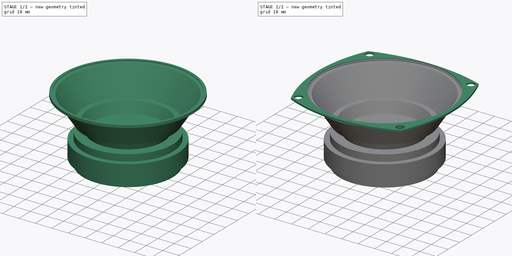
[diagram: build sequence overview — one tinted view per stage of 2, left to right]
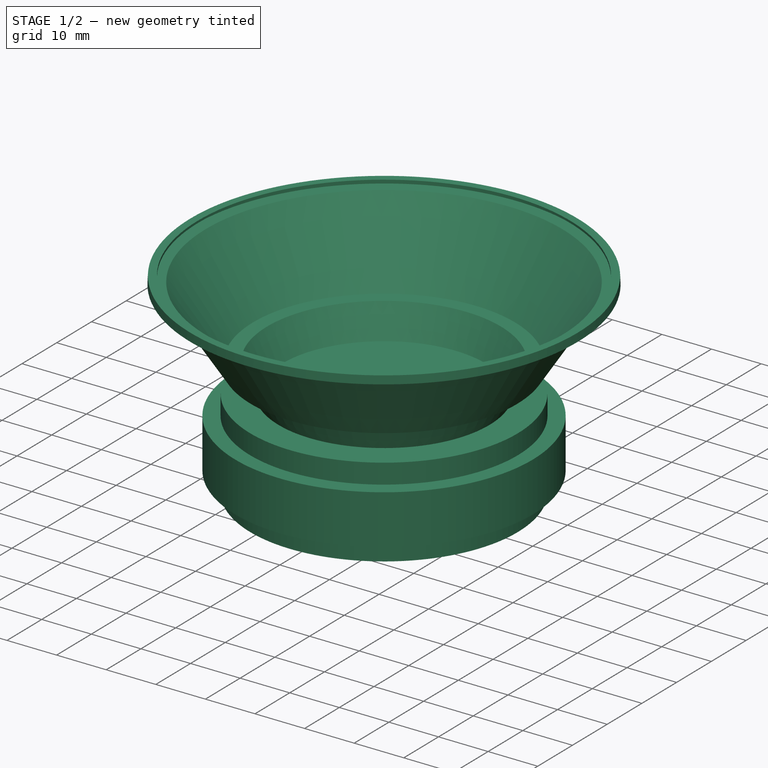
[diagram: stage 1 of 2 — iso view after this stage's code; geometry added in this stage tinted green]
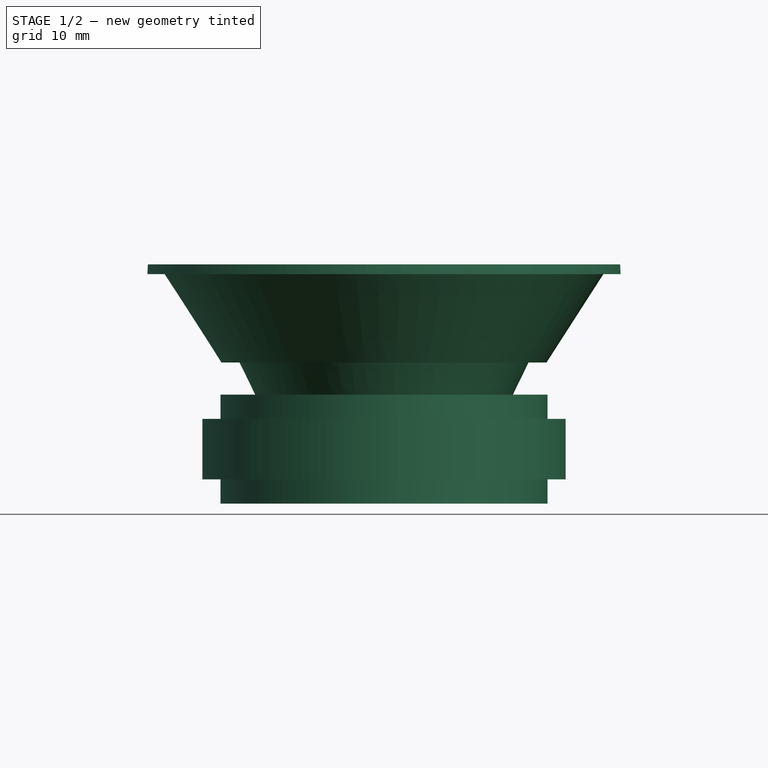
[diagram: stage 1 of 2 — front view after this stage's code; geometry added in this stage tinted green]
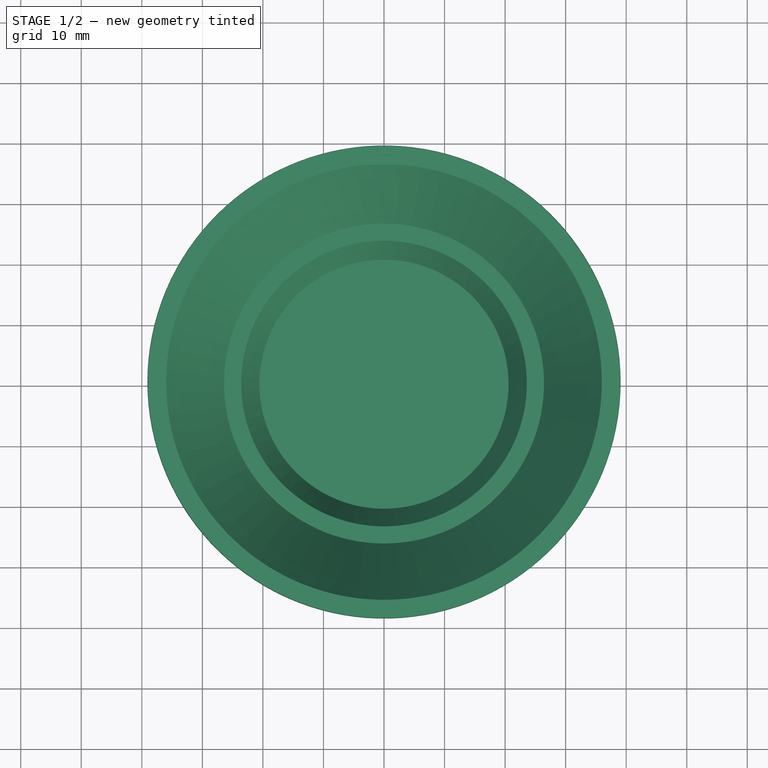
[diagram: stage 1 of 2 — top view after this stage's code; geometry added in this stage tinted green]
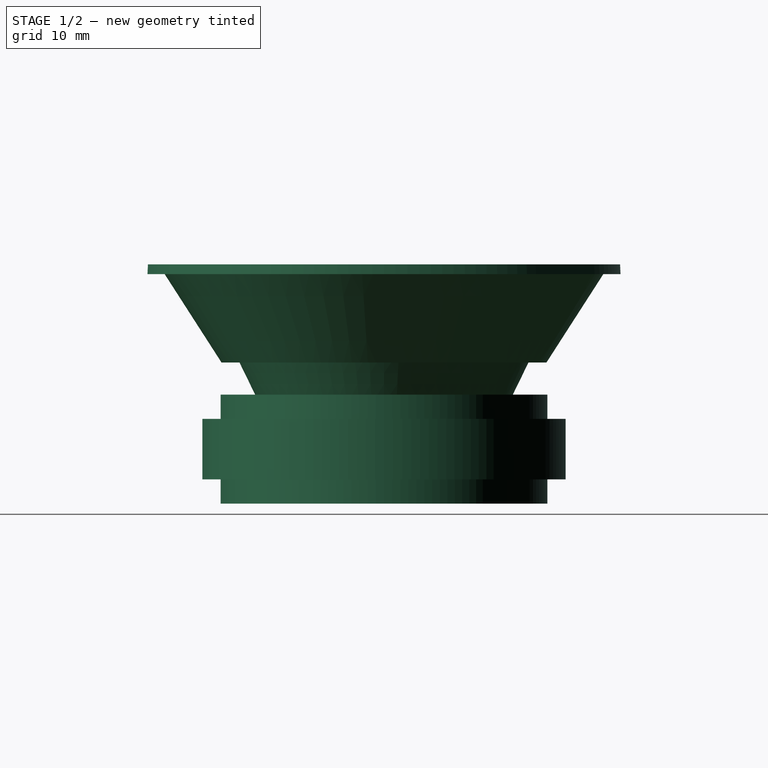
[diagram: stage 1 of 2 — right view after this stage's code; geometry added in this stage tinted green]
FCSTD DOCUMENT  (FreeCAD 1.0R39109 (Git))
Label: Speaker_TwoBodies
License: All rights reserved
LicenseURL: https://en.wikipedia.org/wiki/All_rights_reserved
objects: Sketcher::SketchObject×2, Image::ImagePlane×1, PartDesign::Revolution×1, PartDesign::Pad×1, PartDesign::Body×1, App::Part×1
note: 11 computed .brp shape members not serialized (recipe doc carries the construction recipe); baked Part::Feature solids carry a one-line shape summary decoded from their .brp

FEATURE [Image::ImagePlane] MechanicalDrawing3Inch
  Placement = pos=(-2.2,-1.58e-14,71.3) rot=(1,0,0;1.5708rad)
  XSize = 106.993
  YSize = 189.148
FEATURE [Sketcher::SketchObject] Sketch  label="Sketch_MetalFrame"
  ArcFitTolerance = 1e-06
  AttachmentSupport = -> [XZ_Plane001]
  FullyConstrained = false
  MakeInternals = false
  MapMode = 5
  Placement = pos=(0,0,0) rot=(1,0,0;1.5708rad)
  sketch-geometry (22):
    g0: LineSegment StartX=0 StartY=0 StartZ=0 EndX=27 EndY=0 EndZ=0
    g1: LineSegment StartX=27 StartY=0 StartZ=0 EndX=27 EndY=4 EndZ=0
    g2: LineSegment StartX=27 StartY=4 StartZ=0 EndX=30 EndY=4 EndZ=0
    g3: LineSegment StartX=30 StartY=4 StartZ=0 EndX=30 EndY=14 EndZ=0
    g4: LineSegment StartX=30 StartY=14 StartZ=0 EndX=27 EndY=14 EndZ=0
    g5: LineSegment StartX=27 StartY=14 StartZ=0 EndX=27 EndY=18 EndZ=0
    g6: LineSegment StartX=27 StartY=18 StartZ=0 EndX=21.287 EndY=18 EndZ=0
    g7: LineSegment StartX=21.287 StartY=18 StartZ=0 EndX=23.8733 EndY=23.3071 EndZ=0
    g8: LineSegment StartX=23.8733 StartY=23.3071 StartZ=0 EndX=26.8477 EndY=23.3071 EndZ=0
    g9: LineSegment StartX=26.8477 StartY=23.3071 StartZ=0 EndX=36.2316 EndY=37.8913 EndZ=0
    g10: LineSegment StartX=36.2316 StartY=37.8913 StartZ=0 EndX=39.0747 EndY=37.8913 EndZ=0
    g11: LineSegment StartX=37.5059 StartY=39.5 StartZ=0 EndX=39 EndY=39.5 EndZ=0
    g12: LineSegment StartX=39 StartY=39.5 StartZ=0 EndX=39.0747 EndY=37.8913 EndZ=0
    g13: LineSegment StartX=0 StartY=17.9609 StartZ=0 EndX=20.5682 EndY=17.9609 EndZ=0
    g14: LineSegment StartX=20.5682 StartY=17.9609 StartZ=0 EndX=23.5891 EndY=23.9079 EndZ=0
    g15: LineSegment StartX=23.5891 StartY=23.9079 StartZ=0 EndX=26.4197 EndY=23.9079 EndZ=0
    g16: LineSegment StartX=26.4197 StartY=23.9079 StartZ=0 EndX=35.9727 EndY=38.344 EndZ=0
    g17: LineSegment StartX=35.9727 StartY=38.344 StartZ=0 EndX=38.4934 EndY=38.344 EndZ=0
    g18: LineSegment StartX=38.4934 StartY=38.344 StartZ=0 EndX=38.4934 EndY=39.0665 EndZ=0
    g19: LineSegment StartX=38.4934 StartY=39.0665 StartZ=0 EndX=37.5059 EndY=39.0665 EndZ=0
    g20: LineSegment StartX=37.5059 StartY=39.0665 StartZ=0 EndX=37.5059 EndY=39.5 EndZ=0
    g21: LineSegment StartX=0 StartY=17.9609 StartZ=0 EndX=0 EndY=0 EndZ=0
  constraints (48):
    c: Coincident(g-1,g0)
    c: PointOnObject(g0,g-1)
    c: Coincident(g0,g1)
    c: Coincident(g1,g2)
    c: Coincident(g2,g3)
    c: Coincident(g3,g4)
    c: Coincident(g4,g5)
    c: Coincident(g5,g6)
    c: Coincident(g6,g7)
    c: Coincident(g7,g8)
    c: Coincident(g8,g9)
    c: Coincident(g9,g10)
    c: Coincident(g11,g12)
    c: Coincident(g12,g10)
    c: Vertical(g1,g4)
    c: Vertical(g3)
    c: Horizontal(g4)
    c: Vertical(g5)
    c: Vertical(g1)
    c: Horizontal(g2)
    c: DistanceX(g0,g0) = 27
    c: DistanceX(g0,g2) = 30
    c: DistanceY(g1,g1) = 4
    c: DistanceY(g5,g5) = 4
    c: Horizontal(g6)
    c: DistanceY(g3,g3) = 10
    c: Horizontal(g8)
    c: Horizontal(g11)
    c: Horizontal(g10)
    c: DistanceY(g0,g11) = 39.5
    c: DistanceX(g0,g11) = 39
    c: PointOnObject(g13,g-2)
    c: Horizontal(g13)
    c: Coincident(g13,g14)
    c: Coincident(g14,g15)
    c: Horizontal(g15)
    c: Coincident(g15,g16)
    c: Coincident(g16,g17)
    c: Horizontal(g17)
    c: Coincident(g17,g18)
    c: Coincident(g18,g19)
    c: Coincident(g19,g20)
    c: Coincident(g20,g11)
    c: Vertical(g20)
    c: Horizontal(g19)
    c: Vertical(g18)
    c: Coincident(g13,g21)
    c: Coincident(g21,g0)
FEATURE [PartDesign::Revolution] Revolution  label="Revolution_MetalFrame"
  Angle = 360
  Angle2 = 60
  Axis = (0,2e-16,1)
  Base = (0,0,0)
  Placement = pos=(0,0,0) rot=(1,0,0;1.5708rad)
  Profile = -> Sketch
  ReferenceAxis = -> Sketch [V_Axis]
  Refine = true
  Reversed = true
  Suppressed = false
  Type = 0
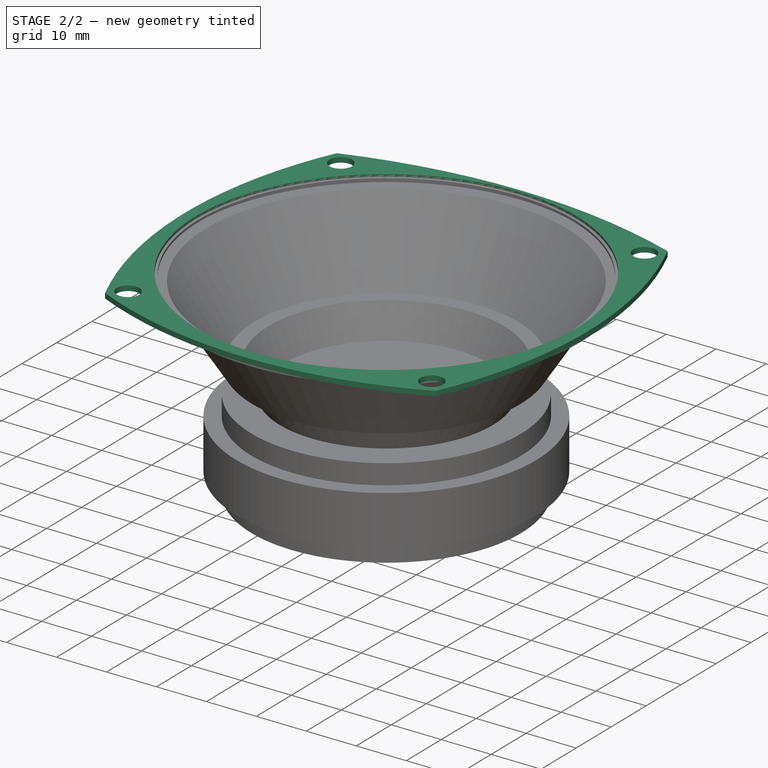
[diagram: stage 2 of 2 — iso view after this stage's code; geometry added in this stage tinted green]
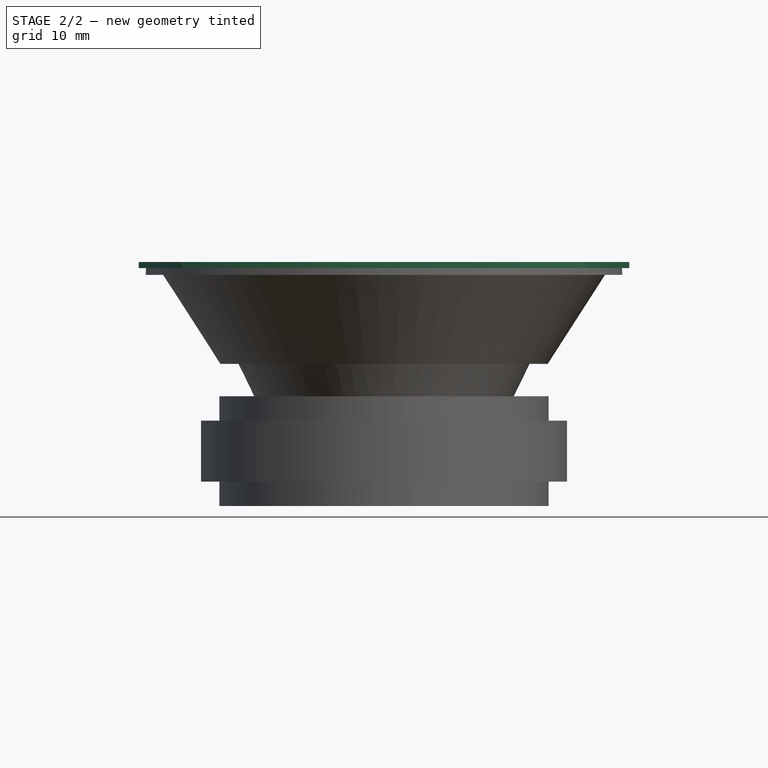
[diagram: stage 2 of 2 — front view after this stage's code; geometry added in this stage tinted green]
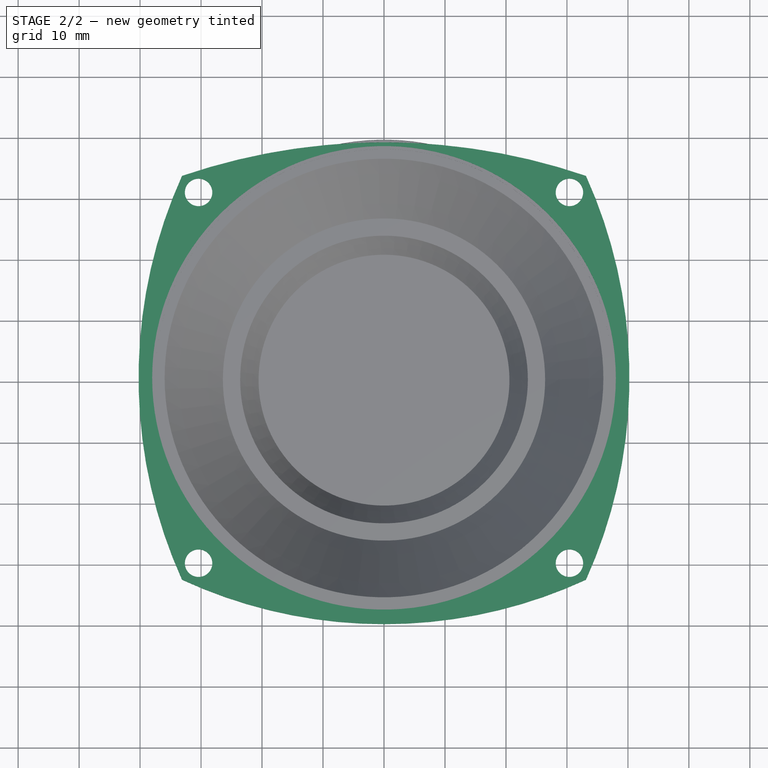
[diagram: stage 2 of 2 — top view after this stage's code; geometry added in this stage tinted green]
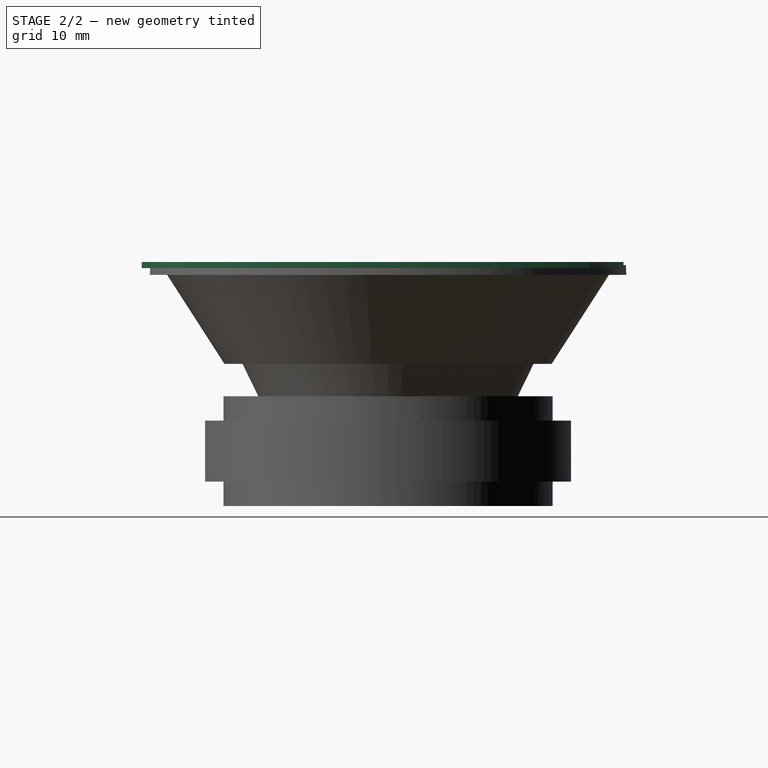
[diagram: stage 2 of 2 — right view after this stage's code; geometry added in this stage tinted green]
FEATURE [Sketcher::SketchObject] Sketch001
  ArcFitTolerance = 1e-06
  AttachmentOffset = pos=(0,0,39) rot=(0,0,1;0rad)
  AttachmentSupport = -> [XY_Plane001]
  FullyConstrained = false
  MakeInternals = false
  MapMode = 5
  Placement = pos=(0,0,39) rot=(0,0,1;0rad)
  sketch-geometry (20):
    g0: Circle [constr] CenterX=0 CenterY=0 CenterZ=0 NormalX=0 NormalY=0 NormalZ=1 AngleXU=0 Radius=43
    g1: LineSegment [constr] StartX=-30.4056 StartY=30.4056 StartZ=0 EndX=-30.4056 EndY=-30.4056 EndZ=0
    g2: LineSegment [constr] StartX=-30.4056 StartY=-30.4056 StartZ=0 EndX=30.4056 EndY=-30.4056 EndZ=0
    g3: LineSegment [constr] StartX=30.4056 StartY=-30.4056 StartZ=0 EndX=30.4056 EndY=30.4056 EndZ=0
    g4: LineSegment [constr] StartX=30.4056 StartY=30.4056 StartZ=0 EndX=-30.4056 EndY=30.4056 EndZ=0
    g5: Circle CenterX=-30.4056 CenterY=30.4056 CenterZ=0 NormalX=0 NormalY=0 NormalZ=1 AngleXU=0 Radius=2.25
    g6: Circle CenterX=30.4056 CenterY=30.4056 CenterZ=0 NormalX=0 NormalY=0 NormalZ=1 AngleXU=0 Radius=2.25
    g7: Circle CenterX=30.4056 CenterY=-30.4056 CenterZ=0 NormalX=0 NormalY=0 NormalZ=1 AngleXU=0 Radius=2.25
    g8: Circle CenterX=-30.4056 CenterY=-30.4056 CenterZ=0 NormalX=0 NormalY=0 NormalZ=1 AngleXU=0 Radius=2.25
    g9: Circle CenterX=0 CenterY=0 CenterZ=0 NormalX=0 NormalY=0 NormalZ=1 AngleXU=0 Radius=38.0173
    g10: ArcOfCircle CenterX=-40.25 CenterY=-6e-15 CenterZ=0 NormalX=0 NormalY=0 NormalZ=1 AngleXU=0 Radius=80.5 StartAngle=5.85915 EndAngle=6.70722
    g11: ArcOfCircle CenterX=40.25 CenterY=3e-15 CenterZ=0 NormalX=0 NormalY=0 NormalZ=1 AngleXU=0 Radius=80.5 StartAngle=2.71756 EndAngle=3.56562
    g12: ArcOfCircle CenterX=-3.1e-15 CenterY=-63.8625 CenterZ=0 NormalX=0 NormalY=0 NormalZ=1 AngleXU=0 Radius=102.483 StartAngle=1.24171 EndAngle=1.89989
    g13: ArcOfCircle CenterX=4.2e-15 CenterY=38.6203 CenterZ=0 NormalX=0 NormalY=0 NormalZ=1 AngleXU=0 Radius=79.0175 StartAngle=4.27987 EndAngle=5.14491
    g14: GeomPoint [constr] X=0 Y=0 Z=0
    g15: LineSegment [constr] StartX=-33.1207 StartY=33.1207 StartZ=0 EndX=-33.1207 EndY=-33.1207 EndZ=0
    g16: LineSegment [constr] StartX=-33.1207 StartY=-33.1207 StartZ=0 EndX=33.1207 EndY=-33.1207 EndZ=0
    g17: LineSegment [constr] StartX=33.1207 StartY=-33.1207 StartZ=0 EndX=33.1207 EndY=33.1207 EndZ=0
    g18: LineSegment [constr] StartX=33.1207 StartY=33.1207 StartZ=0 EndX=-33.1207 EndY=33.1207 EndZ=0
    g19: GeomPoint [constr] X=-7e-16 Y=1.9e-15 Z=0
  constraints (46):
    c: Coincident(g0,g-1)
    c: Diameter(g0) = 86
    c: Coincident(g1,g2)
    c: Coincident(g2,g3)
    c: Coincident(g3,g4)
    c: Coincident(g4,g1)
    c: Vertical(g1)
    c: Vertical(g3)
    c: Horizontal(g2)
    c: Horizontal(g4)
    c: Symmetric(g1,g2,g0)
    c: Coincident(g5,g1)
    c: Coincident(g6,g3)
    c: Coincident(g7,g2)
    c: Coincident(g8,g1)
    c: Diameter(g5) = 4.5
    c: Equal(g5,g6)
    c: Equal(g6,g7)
    c: Equal(g7,g8)
    c: Equal(g4,g1)
    c: Distance(g0,g1) = 43
    c: Coincident(g9,g0)
    c: Radius(g10) = 80.5
    c: Symmetric(g10,g10,g-1)
    c: PointOnObject(g11,g10)
    c: Equal(g11,g10)
    c: Coincident(g12,g11)
    c: Coincident(g12,g10)
    c: PointOnObject(g13,g12)
    c: Coincident(g13,g11)
    c: Coincident(g13,g10)
    c: Coincident(g15,g16)
    c: Coincident(g16,g17)
    c: Coincident(g17,g18)
    c: Coincident(g18,g15)
    c: Vertical(g15)
    c: Vertical(g17)
    c: Horizontal(g16)
    c: Horizontal(g18)
    c: Symmetric(g17,g15,g19)
    c: Symmetric(g15,g16,g14)
    c: Coincident(g17,g10)
    c: Coincident(g11,g15)
    c: Coincident(g11,g15)
    c: Equal(g15,g18)
    c: Coincident(g14,g0)
FEATURE [PartDesign::Pad] Pad  label="Pad_MountingFlange"
  BaseFeature = -> Revolution
  Direction = (0,0,1)
  Length = 1
  Length2 = 10
  Placement = pos=(0,0,0) rot=(1,0,0;1.5708rad)
  Profile = -> Sketch001
  ReferenceAxis = -> Sketch001 [N_Axis]
  Refine = true
  Suppressed = false
  Type = 0
FEATURE [PartDesign::Body] Body  label="Body_MetalWork"
  AllowCompound = false
  Group = -> [Sketch,Revolution,Sketch001,Pad]
  Origin = -> Origin001
  Tip = -> Pad
FEATURE [App::Part] Part  label="Part_Speaker"
  Group = -> [Body]
  Origin = -> Origin
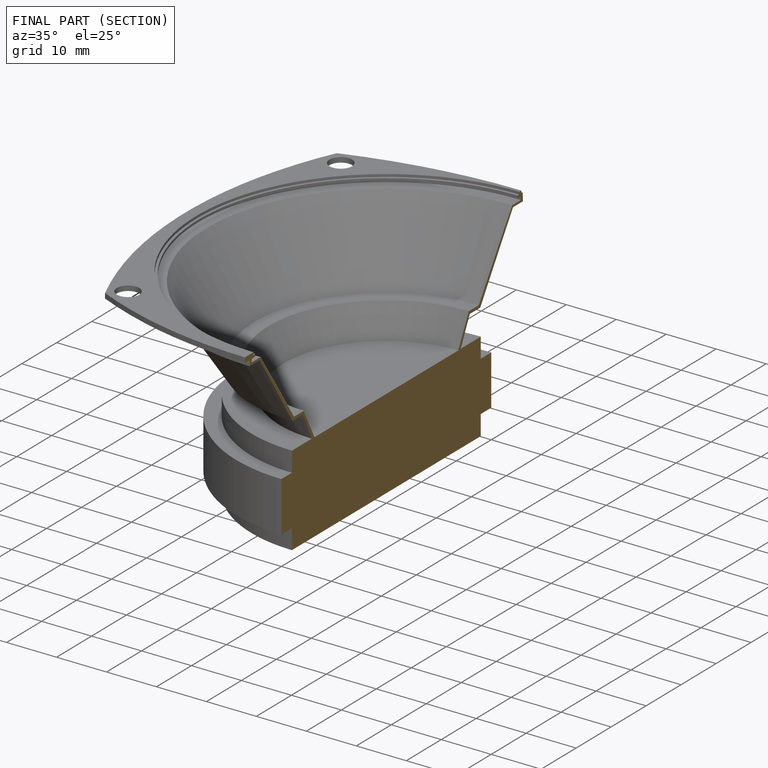
[diagram: finished part — half-section view (interior)]
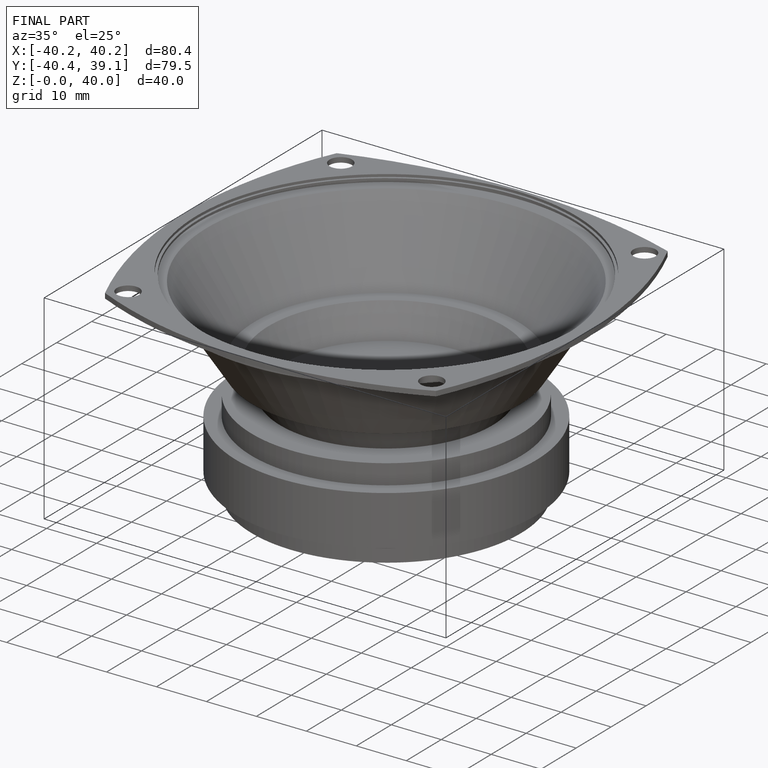
[diagram: finished part — iso view with bounding-box wireframe]
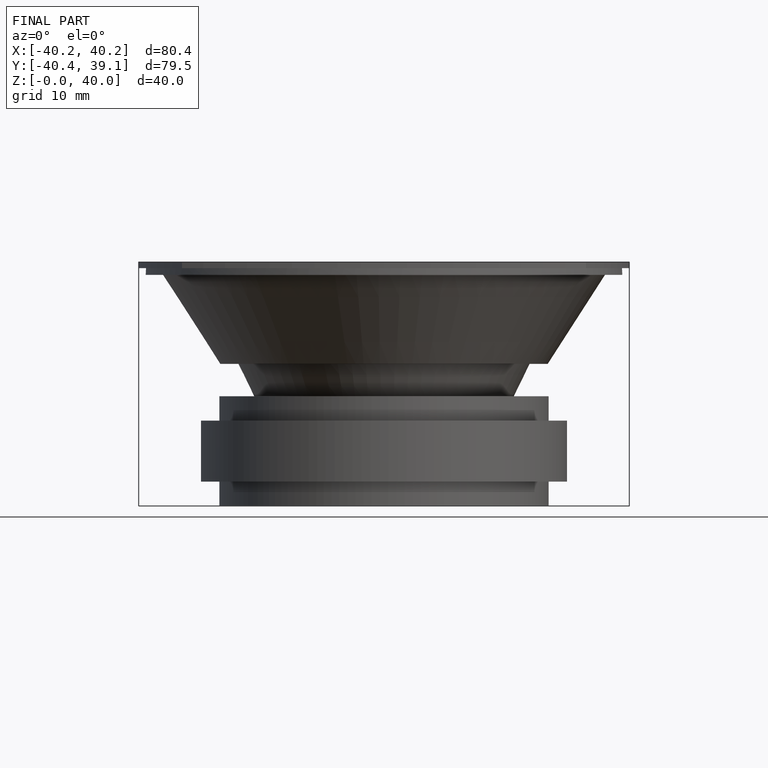
[diagram: finished part — front view with bounding-box wireframe]
